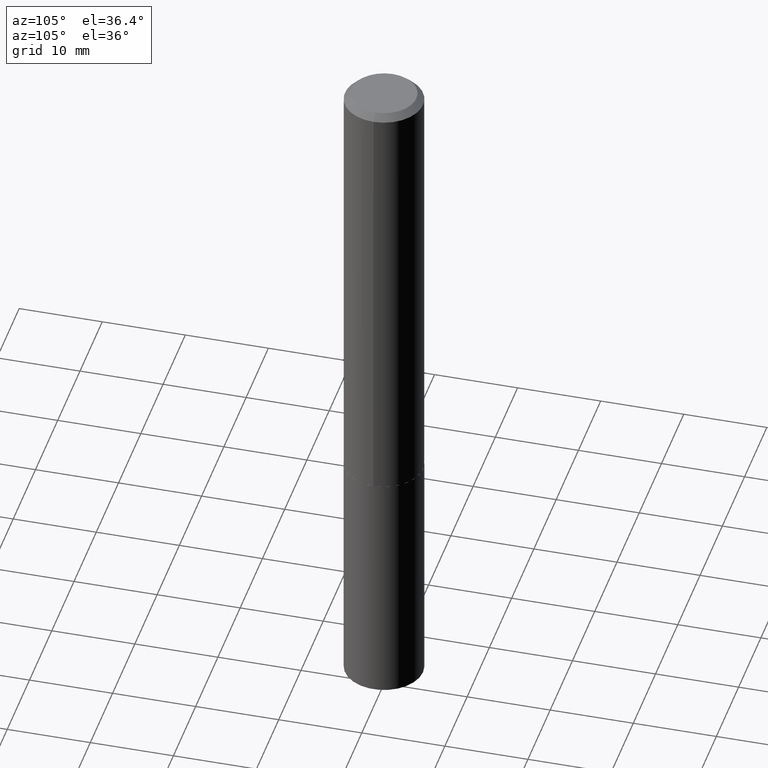
[diagram: clean part render]
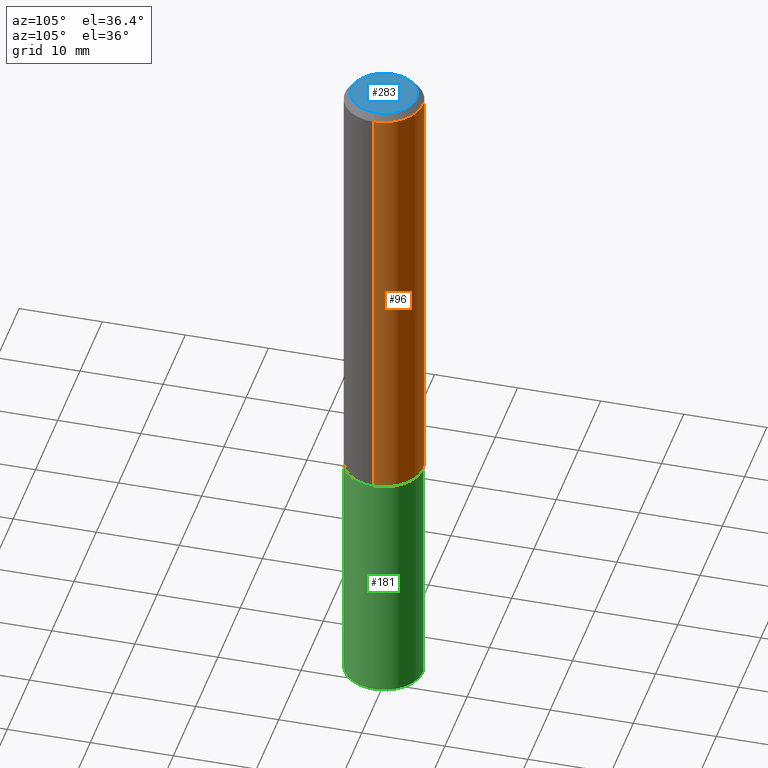
[diagram: same view with three faces highlighted in distinct colors, each labeled with its STEP entity id]
A machine part, auxiliary view with three faces highlighted in distinct colors.
Their STEP definitions:

[orange] entity #96 — the highlighted cylindrical surface (partial cylindrical patch) has radius 4.7003 mm, axis along (-0, 0, 1).
#32 = EDGE_CURVE ( 'NONE', #337, #335, #109, .T. ) ;
#40 = CIRCLE ( 'NONE', #152, 0.1850500000000000200 ) ;
#48 = CARTESIAN_POINT ( 'NONE',  ( 0.000000000000000000, 0.000000000000000000, 0.000000000000000000 ) ) ;
#62 = ORIENTED_EDGE ( 'NONE', *, *, #100, .F. ) ;
#68 = EDGE_LOOP ( 'NONE', ( #246, #146, #62, #332 ) ) ;
#96 = ADVANCED_FACE ( 'NONE', ( #252 ), #107, .T. ) ;
#100 = EDGE_CURVE ( 'NONE', #213, #335, #40, .T. ) ;
#107 = CYLINDRICAL_SURFACE ( 'NONE', #258, 0.1850500000000001311 ) ;
#109 = LINE ( 'NONE', #188, #333 ) ;
#110 = CARTESIAN_POINT ( 'NONE',  ( 0.1850500000000001311, -1.292197243505844668E-15, 9.023365123610386073E-30 ) ) ;
#146 = ORIENTED_EDGE ( 'NONE', *, *, #32, .T. ) ;
#152 = AXIS2_PLACEMENT_3D ( 'NONE', #156, #226, #348 ) ;
#156 = CARTESIAN_POINT ( 'NONE',  ( 7.642090019328604414E-31, -1.091087918388490513E-16, -0.03125000000000021511 ) ) ;
#163 = DIRECTION ( 'NONE',  ( 1.000000000000000000, -6.982962677686267499E-15, 4.876176775795935793E-29 ) ) ;
#167 = CARTESIAN_POINT ( 'NONE',  ( -0.1850500000000000200, -2.409067376452562318E-15, -0.03125000000000021511 ) ) ;
#168 = LINE ( 'NONE', #110, #216 ) ;
#186 = EDGE_CURVE ( 'NONE', #368, #213, #168, .T. ) ;
#188 = CARTESIAN_POINT ( 'NONE',  ( -0.1850500000000001311, 1.314859332524066325E-15, -9.102489384516709155E-30 ) ) ;
#195 = DIRECTION ( 'NONE',  ( -2.445468806185136877E-29, 3.491481338843145188E-15, 1.000000000000000000 ) ) ;
#199 = DIRECTION ( 'NONE',  ( -2.445468806185136597E-29, 3.491481338843145583E-15, 1.000000000000000000 ) ) ;
#213 = VERTEX_POINT ( 'NONE', #387 ) ;
#216 = VECTOR ( 'NONE', #267, 39.37007874015748143 ) ;
#225 = AXIS2_PLACEMENT_3D ( 'NONE', #253, #199, #287 ) ;
#226 = DIRECTION ( 'NONE',  ( -2.445468806185136597E-29, 3.491481338843145583E-15, 1.000000000000000000 ) ) ;
#245 = CIRCLE ( 'NONE', #225, 0.1850500000000002698 ) ;
#246 = ORIENTED_EDGE ( 'NONE', *, *, #355, .T. ) ;
#252 = FACE_OUTER_BOUND ( 'NONE', #68, .T. ) ;
#253 = CARTESIAN_POINT ( 'NONE',  ( 5.140130883720539947E-29, -7.338744626114409370E-15, -2.101900000000000546 ) ) ;
#255 = DIRECTION ( 'NONE',  ( -2.445468806185136597E-29, 3.491481338843145583E-15, 1.000000000000000000 ) ) ;
#258 = AXIS2_PLACEMENT_3D ( 'NONE', #48, #255, #163 ) ;
#259 = CARTESIAN_POINT ( 'NONE',  ( -0.1850500000000002698, -6.023885293590342059E-15, -2.101900000000000546 ) ) ;
#267 = DIRECTION ( 'NONE',  ( -2.445468806185136877E-29, 3.491481338843145188E-15, 1.000000000000000000 ) ) ;
#287 = DIRECTION ( 'NONE',  ( 1.000000000000000000, -6.982962677686265922E-15, 0.000000000000000000 ) ) ;
#291 = CARTESIAN_POINT ( 'NONE',  ( 0.1850500000000002698, -8.630941869620254432E-15, -2.101900000000000546 ) ) ;
#332 = ORIENTED_EDGE ( 'NONE', *, *, #186, .F. ) ;
#333 = VECTOR ( 'NONE', #195, 39.37007874015748143 ) ;
#335 = VERTEX_POINT ( 'NONE', #167 ) ;
#337 = VERTEX_POINT ( 'NONE', #259 ) ;
#348 = DIRECTION ( 'NONE',  ( 1.000000000000000000, -6.982962677686267499E-15, 0.000000000000000000 ) ) ;
#355 = EDGE_CURVE ( 'NONE', #368, #337, #245, .T. ) ;
#368 = VERTEX_POINT ( 'NONE', #291 ) ;
#387 = CARTESIAN_POINT ( 'NONE',  ( 0.1850500000000000200, -1.401306035344692979E-15, -0.03125000000000021511 ) ) ;

[blue] entity #283 — the highlighted planar face has unit normal (0, -0, -1).
#2 = ORIENTED_EDGE ( 'NONE', *, *, #310, .T. ) ;
#39 = CARTESIAN_POINT ( 'NONE',  ( -0.1537999999999999645, 1.128534055747571411E-15, 2.449293598217711460E-19 ) ) ;
#57 = CIRCLE ( 'NONE', #157, 0.1537999999999999645 ) ;
#65 = EDGE_CURVE ( 'NONE', #193, #178, #57, .T. ) ;
#81 = DIRECTION ( 'NONE',  ( 2.438088387897960049E-29, -3.491481338843145188E-15, -1.000000000000000000 ) ) ;
#92 = ORIENTED_EDGE ( 'NONE', *, *, #65, .T. ) ;
#117 = AXIS2_PLACEMENT_3D ( 'NONE', #354, #81, #204 ) ;
#157 = AXIS2_PLACEMENT_3D ( 'NONE', #257, #220, #342 ) ;
#175 = FACE_OUTER_BOUND ( 'NONE', #207, .T. ) ;
#178 = VERTEX_POINT ( 'NONE', #39 ) ;
#193 = VERTEX_POINT ( 'NONE', #200 ) ;
#200 = CARTESIAN_POINT ( 'NONE',  ( 0.1537999999999999645, -1.216894269191866197E-15, 2.449293598374824010E-19 ) ) ;
#204 = DIRECTION ( 'NONE',  ( -1.000000000000000000, 6.982962677686265922E-15, -4.876176775795935793E-29 ) ) ;
#207 = EDGE_LOOP ( 'NONE', ( #2, #92 ) ) ;
#220 = DIRECTION ( 'NONE',  ( -2.445468806185136597E-29, 3.491481338843145583E-15, 1.000000000000000000 ) ) ;
#257 = CARTESIAN_POINT ( 'NONE',  ( -5.989671091818699506E-48, 8.551662891794013634E-34, 2.449293598294725065E-19 ) ) ;
#261 = DIRECTION ( 'NONE',  ( 1.000000000000000000, -6.982962677686267499E-15, 4.876175355846217494E-29 ) ) ;
#270 = CIRCLE ( 'NONE', #346, 0.1537999999999999645 ) ;
#283 = ADVANCED_FACE ( 'NONE', ( #175 ), #385, .F. ) ;
#310 = EDGE_CURVE ( 'NONE', #178, #193, #270, .T. ) ;
#342 = DIRECTION ( 'NONE',  ( 1.000000000000000000, -6.982962677686267499E-15, 4.876175355846217494E-29 ) ) ;
#343 = DIRECTION ( 'NONE',  ( -2.445468806185136597E-29, 3.491481338843145583E-15, 1.000000000000000000 ) ) ;
#346 = AXIS2_PLACEMENT_3D ( 'NONE', #383, #343, #261 ) ;
#354 = CARTESIAN_POINT ( 'NONE',  ( -2.994835545909349753E-48, 4.275831445897006817E-34, 1.224646799147362533E-19 ) ) ;
#383 = CARTESIAN_POINT ( 'NONE',  ( -5.989671091818699506E-48, 8.551662891794013634E-34, 2.449293598294725065E-19 ) ) ;
#385 = PLANE ( 'NONE',  #117 ) ;

[green] entity #181 — the highlighted cylindrical surface (partial cylindrical patch) has radius 4.7003 mm, axis along (-0, 0, 1).
#4 = ORIENTED_EDGE ( 'NONE', *, *, #299, .T. ) ;
#12 = CARTESIAN_POINT ( 'NONE',  ( -1.292197243505792011E-15, -0.1850500000000073197, -2.102399999999999824 ) ) ;
#14 = FACE_OUTER_BOUND ( 'NONE', #180, .T. ) ;
#18 = LINE ( 'NONE', #12, #282 ) ;
#24 = CARTESIAN_POINT ( 'NONE',  ( 7.966223129250220478E-29, -1.137345700306574597E-14, -3.257516001940621742 ) ) ;
#28 = DIRECTION ( 'NONE',  ( -6.982962677686265133E-15, -1.000000000000000000, 2.952551195530141356E-15 ) ) ;
#36 = AXIS2_PLACEMENT_3D ( 'NONE', #24, #140, #82 ) ;
#49 = LINE ( 'NONE', #132, #353 ) ;
#52 = EDGE_CURVE ( 'NONE', #149, #306, #18, .T. ) ;
#82 = DIRECTION ( 'NONE',  ( -6.982962677686265133E-15, -1.000000000000000000, 2.952551195530141356E-15 ) ) ;
#121 = CIRCLE ( 'NONE', #171, 0.1850499999999999923 ) ;
#128 = CYLINDRICAL_SURFACE ( 'NONE', #344, 0.1850499999999999923 ) ;
#132 = CARTESIAN_POINT ( 'NONE',  ( 1.314859332524116418E-15, 0.1850499999999926370, -2.102400000000001157 ) ) ;
#135 = CARTESIAN_POINT ( 'NONE',  ( -1.292197243505792011E-15, -0.1850500000000073197, -2.102399999999999824 ) ) ;
#140 = DIRECTION ( 'NONE',  ( -2.445528852843129027E-29, 3.491395348611256863E-15, 1.000000000000000000 ) ) ;
#149 = VERTEX_POINT ( 'NONE', #281 ) ;
#151 = VERTEX_POINT ( 'NONE', #375 ) ;
#171 = AXIS2_PLACEMENT_3D ( 'NONE', #236, #238, #28 ) ;
#180 = EDGE_LOOP ( 'NONE', ( #4, #215, #362, #274 ) ) ;
#181 = ADVANCED_FACE ( 'NONE', ( #14 ), #128, .T. ) ;
#198 = CIRCLE ( 'NONE', #36, 0.1850499999999999923 ) ;
#214 = EDGE_CURVE ( 'NONE', #306, #151, #121, .T. ) ;
#215 = ORIENTED_EDGE ( 'NONE', *, *, #327, .T. ) ;
#219 = DIRECTION ( 'NONE',  ( -2.445528852843129027E-29, 3.491395348611256863E-15, 1.000000000000000000 ) ) ;
#236 = CARTESIAN_POINT ( 'NONE',  ( 5.141353618123632749E-29, -7.340490366783830084E-15, -2.102400000000000713 ) ) ;
#238 = DIRECTION ( 'NONE',  ( -2.445528852843129027E-29, 3.491395348611256863E-15, 1.000000000000000000 ) ) ;
#274 = ORIENTED_EDGE ( 'NONE', *, *, #52, .F. ) ;
#281 = CARTESIAN_POINT ( 'NONE',  ( -1.292197243505763612E-15, -0.1850500000000113165, -3.257516001940621297 ) ) ;
#282 = VECTOR ( 'NONE', #372, 39.37007874015748143 ) ;
#293 = CARTESIAN_POINT ( 'NONE',  ( 1.314859332524144620E-15, 0.1850499999999885847, -3.257516001940622186 ) ) ;
#299 = EDGE_CURVE ( 'NONE', #149, #381, #198, .T. ) ;
#303 = DIRECTION ( 'NONE',  ( -6.982962677686265133E-15, -1.000000000000000000, 2.952551195530141356E-15 ) ) ;
#306 = VERTEX_POINT ( 'NONE', #135 ) ;
#325 = DIRECTION ( 'NONE',  ( -2.445528852843129027E-29, 3.491395348611256863E-15, 1.000000000000000000 ) ) ;
#327 = EDGE_CURVE ( 'NONE', #381, #151, #49, .T. ) ;
#344 = AXIS2_PLACEMENT_3D ( 'NONE', #376, #325, #303 ) ;
#353 = VECTOR ( 'NONE', #219, 39.37007874015748143 ) ;
#362 = ORIENTED_EDGE ( 'NONE', *, *, #214, .F. ) ;
#372 = DIRECTION ( 'NONE',  ( -2.445528852843129027E-29, 3.491395348611256863E-15, 1.000000000000000000 ) ) ;
#375 = CARTESIAN_POINT ( 'NONE',  ( 1.314859332524144817E-15, 0.1850499999999926370, -2.102400000000001157 ) ) ;
#376 = CARTESIAN_POINT ( 'NONE',  ( 5.141353618123632749E-29, -7.340490366783830084E-15, -2.102400000000000713 ) ) ;
#381 = VERTEX_POINT ( 'NONE', #293 ) ;